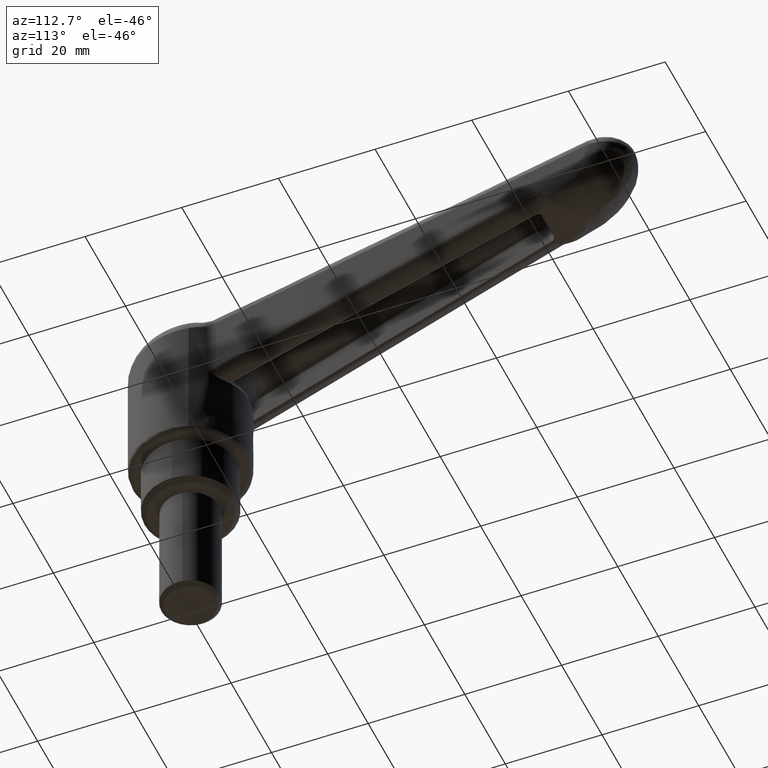
[diagram: clean part render]
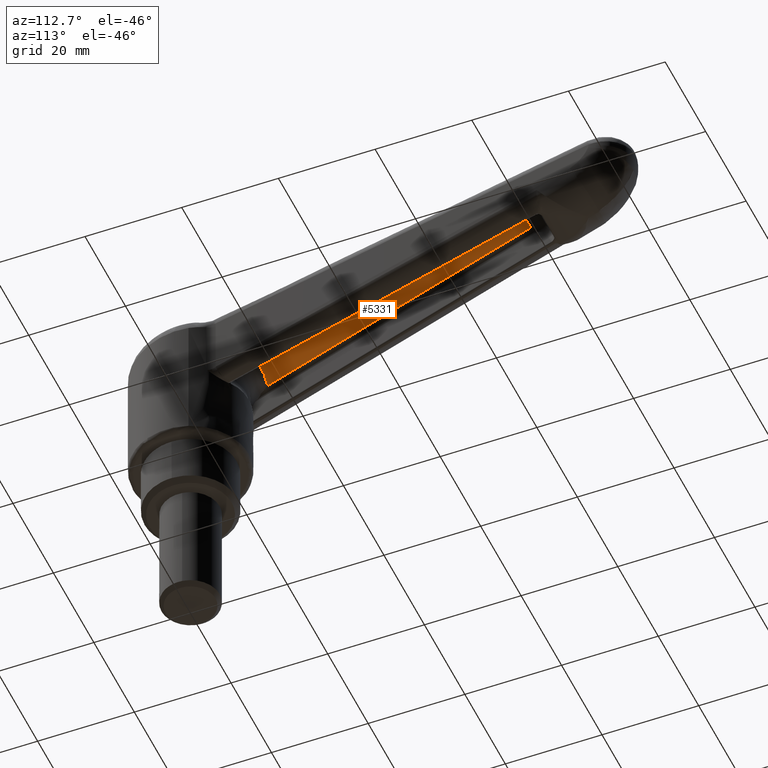
[diagram: same view with one face highlighted and labeled with its STEP entity id]
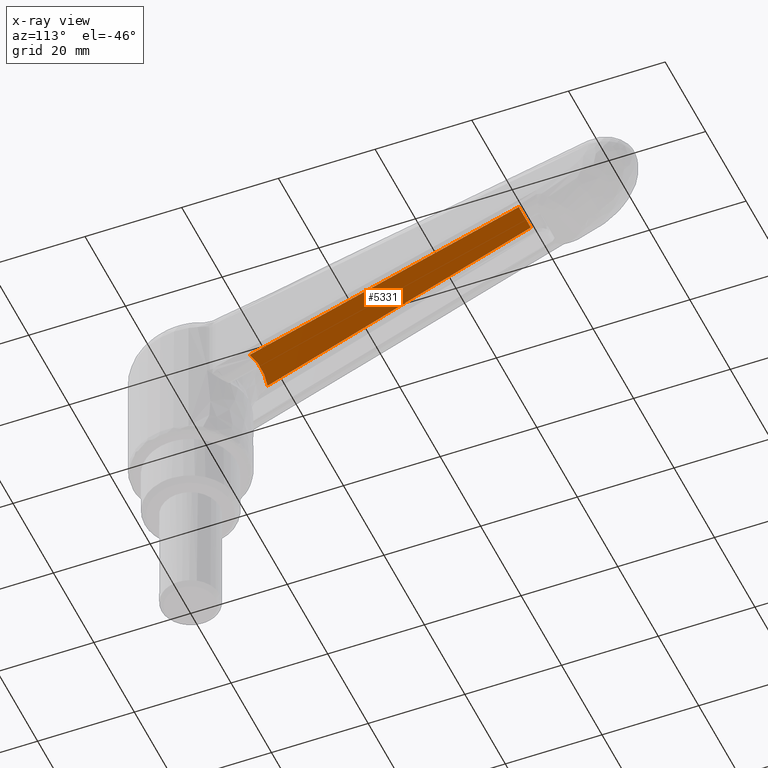
[diagram: x-ray of the same camera — body ghosted, the highlighted face saturated]
A machine part, auxiliary view. The second image highlights one B-rep face of the part: STEP entity #5331.
The next image is the same camera in x-ray: the body ghosted, the highlighted face saturated — about 0% of this face is hidden behind the body in this view.
In plain terms, the highlighted face is a freeform B-spline surface patch.
Its self-contained STEP definition (entity closure, byte-faithful):
#2565=CARTESIAN_POINT('',(69.128801216842504,-2.952061541936060,54.092762230474293));
#2566=VERTEX_POINT('',#2565);
#2614=CARTESIAN_POINT('',(14.073639295410260,-4.424033997806760,34.054321225824602));
#2615=VERTEX_POINT('',#2614);
#2642=CARTESIAN_POINT('',(69.128801216842504,-2.952061541936060,54.092762230474293));
#2643=CARTESIAN_POINT('',(14.073639295410260,-4.424033997806760,34.054321225824602));
#2644=QUASI_UNIFORM_CURVE('',1,(#2642,#2643),.UNSPECIFIED.,.F.,.U.);
#2645=EDGE_CURVE('',#2566,#2615,#2644,.T.);
#3056=CARTESIAN_POINT('',(14.073639295410221,4.424033997806915,34.054321225824602));
#3057=VERTEX_POINT('',#3056);
#3089=CARTESIAN_POINT('',(69.128801216842504,2.952061541936170,54.092762230474293));
#3090=VERTEX_POINT('',#3089);
#3104=CARTESIAN_POINT('',(14.073639295410221,4.424033997806915,34.054321225824602));
#3105=CARTESIAN_POINT('',(69.128801216842504,2.952061541936170,54.092762230474293));
#3106=QUASI_UNIFORM_CURVE('',1,(#3104,#3105),.UNSPECIFIED.,.F.,.U.);
#3107=EDGE_CURVE('',#3057,#3090,#3106,.T.);
#3886=CARTESIAN_POINT('',(69.128801216842504,2.952061541936170,54.092762230474293));
#3887=CARTESIAN_POINT('',(69.128801216842504,-2.952061541936060,54.092762230474293));
#3888=QUASI_UNIFORM_CURVE('',1,(#3886,#3887),.UNSPECIFIED.,.F.,.U.);
#3889=EDGE_CURVE('',#3090,#2566,#3888,.T.);
#4548=CARTESIAN_POINT('',(14.073639295410279,-4.424033997806760,34.054321225824587));
#4549=CARTESIAN_POINT('',(15.241203007922699,8.500145E-014,34.479279681232249));
#4550=CARTESIAN_POINT('',(14.073639295410240,4.424033997806920,34.054321225824580));
#4558=(BOUNDED_CURVE()B_SPLINE_CURVE(2,(#4548,#4549,#4550),.UNSPECIFIED.,.F.,.U.)CURVE()GEOMETRIC_REPRESENTATION_ITEM()QUASI_UNIFORM_CURVE()RATIONAL_B_SPLINE_CURVE((1.0,0.962750937698993,1.0))REPRESENTATION_ITEM(''));
#4559=EDGE_CURVE('',#2615,#3057,#4558,.T.);
#5320=CARTESIAN_POINT('',(71.878804897655058,-4.865995143157053,55.093681755498523));
#5321=CARTESIAN_POINT('',(71.878804897655058,4.865995222265100,55.093681755498523));
#5322=CARTESIAN_POINT('',(11.323632661208670,-4.865995143157053,33.053400625854550));
#5323=CARTESIAN_POINT('',(11.323632661208670,4.865995222265100,33.053400625854550));
#5324=B_SPLINE_SURFACE_WITH_KNOTS('',1,1,((#5320,#5322),(#5321,#5323)),.UNSPECIFIED.,.F.,.F.,.U.,(2,2),(2,2),(0.0,9.731990365422153),(0.0,64.441468611907254),.UNSPECIFIED.);
#5325=ORIENTED_EDGE('',*,*,#3889,.T.);
#5326=ORIENTED_EDGE('',*,*,#2645,.T.);
#5327=ORIENTED_EDGE('',*,*,#4559,.T.);
#5328=ORIENTED_EDGE('',*,*,#3107,.T.);
#5329=EDGE_LOOP('',(#5325,#5326,#5327,#5328));
#5330=FACE_OUTER_BOUND('',#5329,.T.);
#5331=ADVANCED_FACE('',(#5330),#5324,.F.);